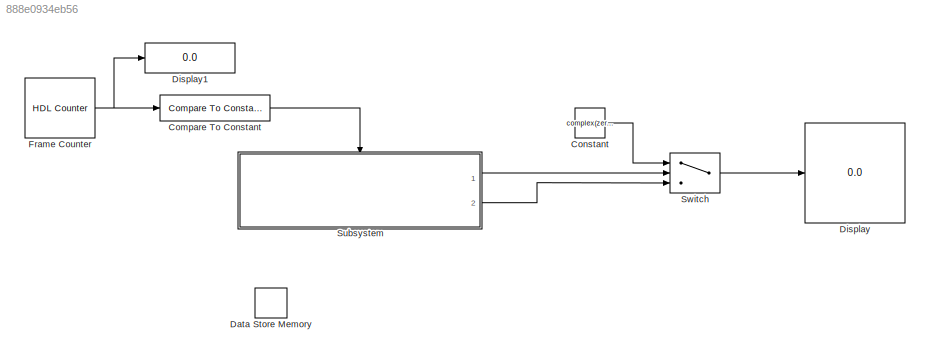
MODEL slx_888e0934eb56
KIND model
CONFIG AbsTol = auto
CONFIG EnableMultiTasking = off
CONFIG FixedStep = auto
CONFIG MaxStep = auto
CONFIG MinStep = auto
CONFIG RelTol = 1e-3
CONFIG SampleTimeConstraint = Unconstrained
CONFIG SolverName = VariableStepAuto
CONFIG StartTime = 0.0
CONFIG StopTime = 30
BLOCK [Reference] Compare To Constant  REF=simulink/Logic and Bit
Operations/Compare
To Constant
  Ports = [1, 1]
  SourceBlock = simulink/Logic and Bit\nOperations/Compare\nTo Constant
  SourceProductBaseCode = SL
  SourceType = Compare To Constant
BLOCK [Constant] Constant
  Value = complex(zeros(size(chirp)))
  VectorParams1D = off
BLOCK [DataStoreMemory] Data Store Memory
  DataStoreName = chirps
  Dimensions = size(chirps)
  InitialValue = chirps
  OutDataTypeStr = double
  ReadBeforeWriteMsg = warning
  ShowAdditionalParam = off
  SignalType = complex
  WriteAfterReadMsg = warning
  WriteAfterWriteMsg = warning
BLOCK [Display] Display
  Decimation = 1
  Ports = [1]
BLOCK [Display] Display1
  Decimation = 1
  Ports = [1]
BLOCK [Reference] Frame Counter  REF=hdlsllib/Sources/HDL Counter
  Ports = [0, 1]
  SourceBlock = hdlsllib/Sources/HDL Counter
  SourceProductBaseCode = SL
  SourceType = HDL Counter
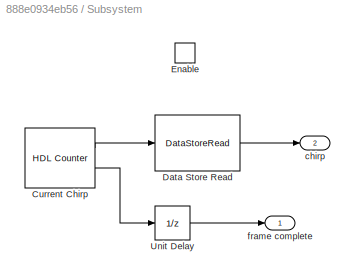
BLOCK [SubSystem] Subsystem
  Ports = [0, 2, 1]
  RequestExecContextInheritance = off
BLOCK [Reference] Subsystem/Current Chirp  REF=hdlsllib/Sources/HDL Counter
  Ports = [0, 2]
  SourceBlock = hdlsllib/Sources/HDL Counter
  SourceProductBaseCode = SL
  SourceType = HDL Counter
BLOCK [DataStoreRead] Subsystem/Data Store Read
  DataStoreElements = chirps
  DataStoreName = chirps
  EnableIndexing = on
  IndexOptions = Index vector (port),Select all
  Indices = 1,1
  NumberOfDimensions = 2
  OutputSizes = 1,1
  Ports = [1, 1]
BLOCK [EnablePort] Subsystem/Enable
  Ports = []
  StatesWhenEnabling = reset
BLOCK [UnitDelay] Subsystem/Unit Delay
  HasFrameUpgradeWarning = on
  SampleTime = -1
BLOCK [Outport] Subsystem/chirp
  Port = 2
BLOCK [Outport] Subsystem/frame complete
BLOCK [Switch] Switch
  Criteria = u2 ~= 0
  InputSameDT = off
  SaturateOnIntegerOverflow = off
LINE Compare To Constant:1 -> Subsystem:enable
LINE Constant:1 -> Switch:1
NET Frame Counter:1 -> Compare To Constant:1, Display1:1
LINE Subsystem/Current Chirp:1 -> Subsystem/Data Store Read:1
LINE Subsystem/Current Chirp:2 -> Subsystem/Unit Delay:1
LINE Subsystem/Data Store Read:1 -> Subsystem/chirp:1
LINE Subsystem/Unit Delay:1 -> Subsystem/frame complete:1
LINE Subsystem:1 -> Switch:2
LINE Subsystem:2 -> Switch:3
LINE Switch:1 -> Display:1
note: NET lines group one-source signal fan-out (src -> all destinations, sorted); 1:1 wires keep LINE
